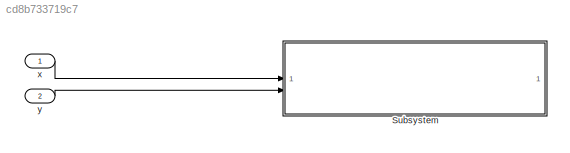
MODEL slx_cd8b733719c7
KIND model
CONFIG AbsTol = auto
CONFIG EnableMultiTasking = off
CONFIG FixedStep = auto
CONFIG MaxStep = auto
CONFIG MinStep = auto
CONFIG RelTol = 1e-3
CONFIG SampleTimeConstraint = Unconstrained
CONFIG SolverName = VariableStepAuto
CONFIG StartTime = 0.0
CONFIG StopTime = 10.0
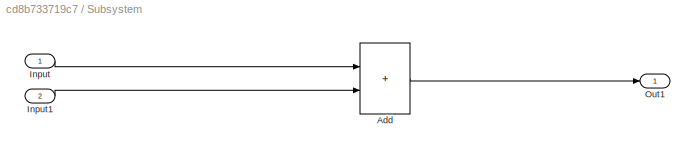
BLOCK [SubSystem] Subsystem
BLOCK [Sum] Subsystem/Add
  IconShape = rectangular
BLOCK [Inport] Subsystem/Input
BLOCK [Inport] Subsystem/Input1
  Port = 2
BLOCK [Outport] Subsystem/Out1
BLOCK [Inport] x
BLOCK [Inport] y
  Port = 2
LINE Subsystem/Add:1 -> Subsystem/Out1:1
LINE Subsystem/Input1:1 -> Subsystem/Add:2
LINE Subsystem/Input:1 -> Subsystem/Add:1
LINE x:1 -> Subsystem:1
LINE y:1 -> Subsystem:2
